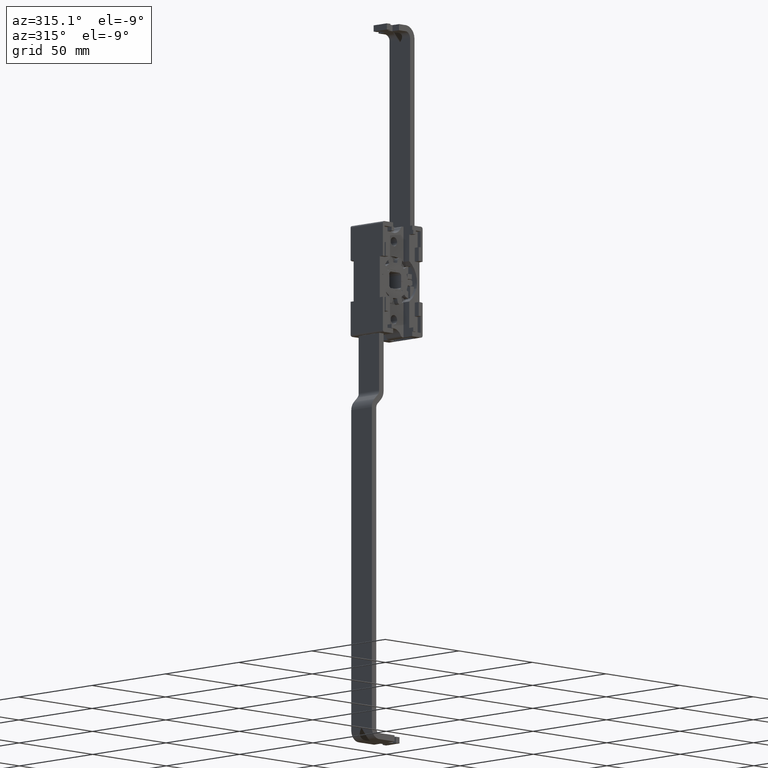
[diagram: clean part render]
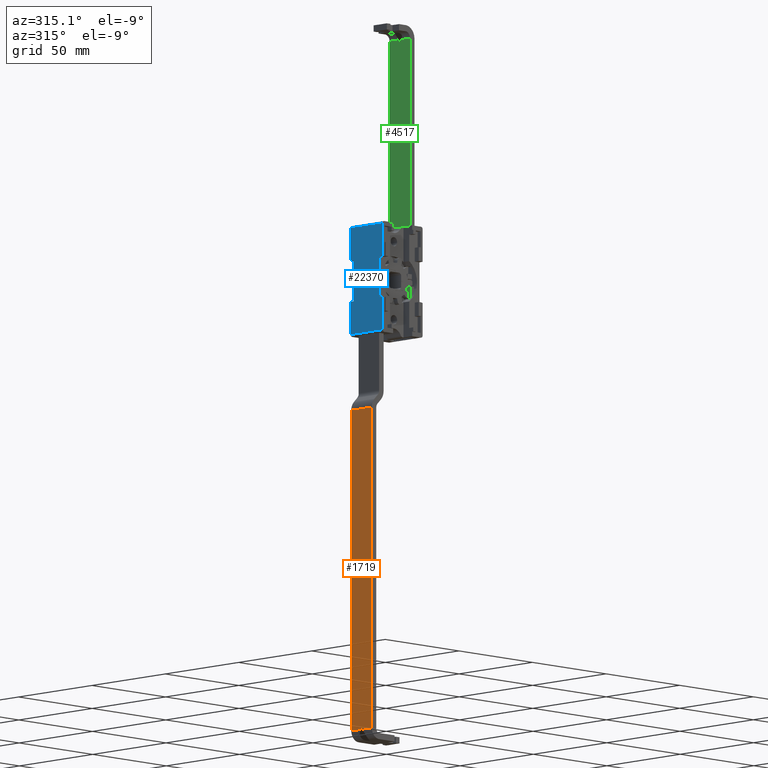
[diagram: same view with three faces highlighted in distinct colors, each labeled with its STEP entity id]
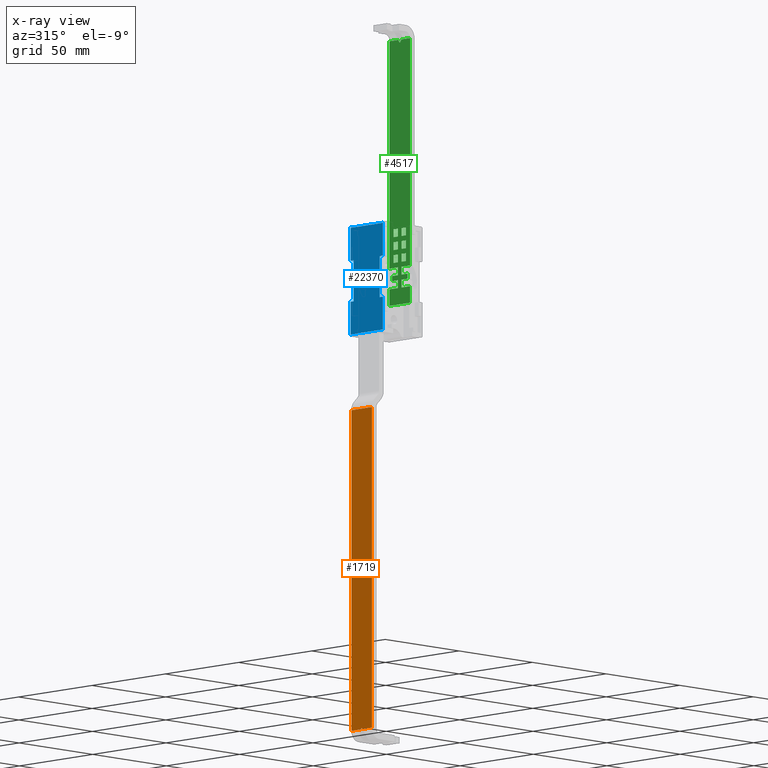
[diagram: x-ray of the same camera — body ghosted, the three highlighted faces saturated]
A machine part, auxiliary view with three faces highlighted in distinct colors.
The next image is the same camera in x-ray (body ghosted, the three faces saturated) — at least one of them is partly hidden behind the body in this view.
Their STEP definitions:

[orange] entity #1719 — the highlighted face is a freeform B-spline surface patch.
#51=CARTESIAN_POINT('',(-16.900000421246951,3.255396E-014,-219.236170932559500));
#52=VERTEX_POINT('',#51);
#58=CARTESIAN_POINT('',(-16.900000421246901,0.540120017334167,-220.000015986382490));
#59=VERTEX_POINT('',#58);
#60=CARTESIAN_POINT('',(-16.900000421246901,0.540120017334167,-220.000015986382490));
#61=CARTESIAN_POINT('',(-16.900000421246951,3.255396E-014,-219.236170932559500));
#62=QUASI_UNIFORM_CURVE('',1,(#60,#61),.UNSPECIFIED.,.F.,.U.);
#63=EDGE_CURVE('',#59,#52,#62,.T.);
#102=CARTESIAN_POINT('',(-16.900000421246901,-0.540120017334056,-220.000015986382490));
#103=VERTEX_POINT('',#102);
#119=CARTESIAN_POINT('',(-16.900000421246901,-0.540120017334056,-220.000015986382490));
#120=CARTESIAN_POINT('',(-16.900000421246951,3.255396E-014,-219.236170932559500));
#121=QUASI_UNIFORM_CURVE('',1,(#119,#120),.UNSPECIFIED.,.F.,.U.);
#122=EDGE_CURVE('',#103,#52,#121,.T.);
#1658=CARTESIAN_POINT('',(-16.900000421246901,-7.000000332482160,-220.000015986382490));
#1659=VERTEX_POINT('',#1658);
#1675=CARTESIAN_POINT('',(-16.900000421246901,-0.540120017334056,-220.000015986382490));
#1676=CARTESIAN_POINT('',(-16.900000421246901,-7.000000332482160,-220.000015986382490));
#1677=QUASI_UNIFORM_CURVE('',1,(#1675,#1676),.UNSPECIFIED.,.F.,.U.);
#1678=EDGE_CURVE('',#103,#1659,#1677,.T.);
#1683=CARTESIAN_POINT('',(-16.900000421246901,-7.699300469984402,-227.805071428494300));
#1684=CARTESIAN_POINT('',(-16.900000421246901,-7.699300469984402,-55.937584081471577));
#1685=CARTESIAN_POINT('',(-16.900000421246901,7.699300720323921,-227.805071428494300));
#1686=CARTESIAN_POINT('',(-16.900000421246901,7.699300720323921,-55.937584081471577));
#1687=B_SPLINE_SURFACE_WITH_KNOTS('',1,1,((#1683,#1685),(#1684,#1686)),.UNSPECIFIED.,.F.,.F.,.U.,(2,2),(2,2),(0.0,171.867487347022690),(0.0,15.398601190308320),.UNSPECIFIED.);
#1688=ORIENTED_EDGE('',*,*,#122,.F.);
#1689=ORIENTED_EDGE('',*,*,#1678,.T.);
#1690=CARTESIAN_POINT('',(-16.900000421246851,-7.000000332482160,-63.742643714732708));
#1691=VERTEX_POINT('',#1690);
#1692=CARTESIAN_POINT('',(-16.900000421246851,-7.000000332482160,-63.742643714732708));
#1693=CARTESIAN_POINT('',(-16.900000421246901,-7.000000332482160,-220.000015986382490));
#1694=QUASI_UNIFORM_CURVE('',1,(#1692,#1693),.UNSPECIFIED.,.F.,.U.);
#1695=EDGE_CURVE('',#1691,#1659,#1694,.T.);
#1696=ORIENTED_EDGE('',*,*,#1695,.F.);
#1697=CARTESIAN_POINT('',(-16.900000421246851,7.000000332482160,-63.742643714732708));
#1698=VERTEX_POINT('',#1697);
#1699=CARTESIAN_POINT('',(-16.900000421246851,7.000000332482160,-63.742643714732708));
#1700=CARTESIAN_POINT('',(-16.900000421246851,-7.000000332482160,-63.742643714732708));
#1701=QUASI_UNIFORM_CURVE('',1,(#1699,#1700),.UNSPECIFIED.,.F.,.U.);
#1702=EDGE_CURVE('',#1698,#1691,#1701,.T.);
#1703=ORIENTED_EDGE('',*,*,#1702,.F.);
#1704=CARTESIAN_POINT('',(-16.900000421246901,7.000000332482160,-220.000015986382490));
#1705=VERTEX_POINT('',#1704);
#1706=CARTESIAN_POINT('',(-16.900000421246851,7.000000332482160,-63.742643714732708));
#1707=CARTESIAN_POINT('',(-16.900000421246901,7.000000332482160,-220.000015986382490));
#1708=QUASI_UNIFORM_CURVE('',1,(#1706,#1707),.UNSPECIFIED.,.F.,.U.);
#1709=EDGE_CURVE('',#1698,#1705,#1708,.T.);
#1710=ORIENTED_EDGE('',*,*,#1709,.T.);
#1711=CARTESIAN_POINT('',(-16.900000421246901,7.000000332482160,-220.000015986382490));
#1712=CARTESIAN_POINT('',(-16.900000421246901,0.540120017334167,-220.000015986382490));
#1713=QUASI_UNIFORM_CURVE('',1,(#1711,#1712),.UNSPECIFIED.,.F.,.U.);
#1714=EDGE_CURVE('',#1705,#59,#1713,.T.);
#1715=ORIENTED_EDGE('',*,*,#1714,.T.);
#1716=ORIENTED_EDGE('',*,*,#63,.T.);
#1717=EDGE_LOOP('',(#1688,#1689,#1696,#1703,#1710,#1715,#1716));
#1718=FACE_OUTER_BOUND('',#1717,.T.);
#1719=ADVANCED_FACE('',(#1718),#1687,.T.);

[blue] entity #22370 — the highlighted face is a freeform B-spline surface patch.
#19068=CARTESIAN_POINT('',(-13.500000641225300,8.900000422727320,-10.000000474974801));
#19069=VERTEX_POINT('',#19068);
#19075=CARTESIAN_POINT('',(-13.500000641225300,8.900000422727320,10.000000474974801));
#19076=VERTEX_POINT('',#19075);
#19077=CARTESIAN_POINT('',(-13.500000641225300,8.900000422727320,-10.000000474974801));
#19078=CARTESIAN_POINT('',(-13.500000641225300,8.900000422727320,10.000000474974801));
#19079=QUASI_UNIFORM_CURVE('',1,(#19077,#19078),.UNSPECIFIED.,.F.,.U.);
#19080=EDGE_CURVE('',#19069,#19076,#19079,.T.);
#19564=CARTESIAN_POINT('',(-13.500000641225300,11.000000522472080,10.000000474974801));
#19565=VERTEX_POINT('',#19564);
#19566=CARTESIAN_POINT('',(-13.500000641225300,8.900000422727320,10.000000474974801));
#19567=CARTESIAN_POINT('',(-13.500000641225300,11.000000522472080,10.000000474974801));
#19568=QUASI_UNIFORM_CURVE('',1,(#19566,#19567),.UNSPECIFIED.,.F.,.U.);
#19569=EDGE_CURVE('',#19076,#19565,#19568,.T.);
#20151=CARTESIAN_POINT('',(-13.500000641225300,11.000000522472060,-10.000000474974801));
#20152=VERTEX_POINT('',#20151);
#20158=CARTESIAN_POINT('',(-13.500000641225300,8.900000422727320,-10.000000474974801));
#20159=CARTESIAN_POINT('',(-13.500000641225300,11.000000522472060,-10.000000474974801));
#20160=QUASI_UNIFORM_CURVE('',1,(#20158,#20159),.UNSPECIFIED.,.F.,.U.);
#20161=EDGE_CURVE('',#19069,#20152,#20160,.T.);
#20483=CARTESIAN_POINT('',(-13.500000641225300,-8.900000422727320,10.000000474974801));
#20484=VERTEX_POINT('',#20483);
#20490=CARTESIAN_POINT('',(-13.500000641225300,-8.900000422727320,-10.000000474974801));
#20491=VERTEX_POINT('',#20490);
#20492=CARTESIAN_POINT('',(-13.500000641225300,-8.900000422727320,-10.000000474974801));
#20493=CARTESIAN_POINT('',(-13.500000641225300,-8.900000422727320,10.000000474974801));
#20494=QUASI_UNIFORM_CURVE('',1,(#20492,#20493),.UNSPECIFIED.,.F.,.U.);
#20495=EDGE_CURVE('',#20491,#20484,#20494,.T.);
#20978=CARTESIAN_POINT('',(-13.500000641225300,-11.000000522472080,10.000000474974801));
#20979=VERTEX_POINT('',#20978);
#20985=CARTESIAN_POINT('',(-13.500000641225300,-8.900000422727320,10.000000474974801));
#20986=CARTESIAN_POINT('',(-13.500000641225300,-11.000000522472080,10.000000474974801));
#20987=QUASI_UNIFORM_CURVE('',1,(#20985,#20986),.UNSPECIFIED.,.F.,.U.);
#20988=EDGE_CURVE('',#20484,#20979,#20987,.T.);
#21567=CARTESIAN_POINT('',(-13.500000641225300,-11.000000522472080,-10.000000474974801));
#21568=VERTEX_POINT('',#21567);
#21569=CARTESIAN_POINT('',(-13.500000641225300,-8.900000422727320,-10.000000474974801));
#21570=CARTESIAN_POINT('',(-13.500000641225300,-11.000000522472080,-10.000000474974801));
#21571=QUASI_UNIFORM_CURVE('',1,(#21569,#21570),.UNSPECIFIED.,.F.,.U.);
#21572=EDGE_CURVE('',#20491,#21568,#21571,.T.);
#21902=CARTESIAN_POINT('',(-13.500000641225300,-11.000000522471961,-26.000001234933400));
#21903=VERTEX_POINT('',#21902);
#21919=CARTESIAN_POINT('',(-13.500000641225300,11.000000522472080,-26.000001234933400));
#21920=VERTEX_POINT('',#21919);
#21921=CARTESIAN_POINT('',(-13.500000641225300,11.000000522472080,-26.000001234933400));
#21922=CARTESIAN_POINT('',(-13.500000641225300,-11.000000522471961,-26.000001234933400));
#21923=QUASI_UNIFORM_CURVE('',1,(#21921,#21922),.UNSPECIFIED.,.F.,.U.);
#21924=EDGE_CURVE('',#21920,#21903,#21923,.T.);
#21965=CARTESIAN_POINT('',(-13.500000641225240,-11.000000522471961,26.000001234933951));
#21966=VERTEX_POINT('',#21965);
#21987=CARTESIAN_POINT('',(-13.500000641225240,11.000000522472080,26.000001234933951));
#21988=VERTEX_POINT('',#21987);
#22002=CARTESIAN_POINT('',(-13.500000641225240,11.000000522472080,26.000001234933951));
#22003=CARTESIAN_POINT('',(-13.500000641225240,-11.000000522471961,26.000001234933951));
#22004=QUASI_UNIFORM_CURVE('',1,(#22002,#22003),.UNSPECIFIED.,.F.,.U.);
#22005=EDGE_CURVE('',#21988,#21966,#22004,.T.);
#22105=CARTESIAN_POINT('',(-13.500000641225300,-11.000000522472080,-10.000000474974801));
#22106=CARTESIAN_POINT('',(-13.500000641225300,-11.000000522471961,-26.000001234933400));
#22107=QUASI_UNIFORM_CURVE('',1,(#22105,#22106),.UNSPECIFIED.,.F.,.U.);
#22108=EDGE_CURVE('',#21568,#21903,#22107,.T.);
#22151=CARTESIAN_POINT('',(-13.500000641225240,-11.000000522471961,26.000001234933951));
#22152=CARTESIAN_POINT('',(-13.500000641225300,-11.000000522472080,10.000000474974801));
#22153=QUASI_UNIFORM_CURVE('',1,(#22151,#22152),.UNSPECIFIED.,.F.,.U.);
#22154=EDGE_CURVE('',#21966,#20979,#22153,.T.);
#22343=CARTESIAN_POINT('',(-13.500000641225300,-12.098901151587580,-28.597402233794821));
#22344=CARTESIAN_POINT('',(-13.500000641225300,-12.098901151587580,28.597402698711619));
#22345=CARTESIAN_POINT('',(-13.500000641225300,12.098901151587580,-28.597402233794821));
#22346=CARTESIAN_POINT('',(-13.500000641225300,12.098901151587580,28.597402698711619));
#22347=B_SPLINE_SURFACE_WITH_KNOTS('',1,1,((#22343,#22345),(#22344,#22346)),.UNSPECIFIED.,.F.,.F.,.U.,(2,2),(2,2),(0.0,57.194804932506429),(0.0,24.197802303175159),.UNSPECIFIED.);
#22348=ORIENTED_EDGE('',*,*,#19080,.F.);
#22349=ORIENTED_EDGE('',*,*,#20161,.T.);
#22350=CARTESIAN_POINT('',(-13.500000641225300,11.000000522472060,-10.000000474974801));
#22351=CARTESIAN_POINT('',(-13.500000641225300,11.000000522472080,-26.000001234933400));
#22352=QUASI_UNIFORM_CURVE('',1,(#22350,#22351),.UNSPECIFIED.,.F.,.U.);
#22353=EDGE_CURVE('',#20152,#21920,#22352,.T.);
#22354=ORIENTED_EDGE('',*,*,#22353,.T.);
#22355=ORIENTED_EDGE('',*,*,#21924,.T.);
#22356=ORIENTED_EDGE('',*,*,#22108,.F.);
#22357=ORIENTED_EDGE('',*,*,#21572,.F.);
#22358=ORIENTED_EDGE('',*,*,#20495,.T.);
#22359=ORIENTED_EDGE('',*,*,#20988,.T.);
#22360=ORIENTED_EDGE('',*,*,#22154,.F.);
#22361=ORIENTED_EDGE('',*,*,#22005,.F.);
#22362=CARTESIAN_POINT('',(-13.500000641225240,11.000000522472080,26.000001234933951));
#22363=CARTESIAN_POINT('',(-13.500000641225300,11.000000522472080,10.000000474974801));
#22364=QUASI_UNIFORM_CURVE('',1,(#22362,#22363),.UNSPECIFIED.,.F.,.U.);
#22365=EDGE_CURVE('',#21988,#19565,#22364,.T.);
#22366=ORIENTED_EDGE('',*,*,#22365,.T.);
#22367=ORIENTED_EDGE('',*,*,#19569,.F.);
#22368=EDGE_LOOP('',(#22348,#22349,#22354,#22355,#22356,#22357,#22358,#22359,#22360,#22361,#22366,#22367));
#22369=FACE_OUTER_BOUND('',#22368,.T.);
#22370=ADVANCED_FACE('',(#22369),#22347,.T.);

[green] entity #4517 — the highlighted face is a freeform B-spline surface patch.
#2531=CARTESIAN_POINT('',(8.900000041247779,0.353553390593231,117.893527783124600));
#2532=VERTEX_POINT('',#2531);
#2538=CARTESIAN_POINT('',(8.900000041247779,-0.353553390593287,117.893527783124400));
#2539=VERTEX_POINT('',#2538);
#2540=CARTESIAN_POINT('',(8.900000041247779,-0.353553390593134,117.893527783124400));
#2541=CARTESIAN_POINT('',(8.900000041247781,1.329480E-013,117.393527783124870));
#2542=CARTESIAN_POINT('',(8.900000041247779,0.353553390593252,117.893527783124600));
#2550=(BOUNDED_CURVE()B_SPLINE_CURVE(2,(#2540,#2541,#2542),.UNSPECIFIED.,.F.,.U.)CURVE()GEOMETRIC_REPRESENTATION_ITEM()QUASI_UNIFORM_CURVE()RATIONAL_B_SPLINE_CURVE((1.0,0.707106781186709,1.0))REPRESENTATION_ITEM(''));
#2551=EDGE_CURVE('',#2539,#2532,#2550,.T.);
#2654=CARTESIAN_POINT('',(8.900000044703019,-1.135849587458936,118.999861671069790));
#2655=VERTEX_POINT('',#2654);
#2656=CARTESIAN_POINT('',(8.900000041247779,-0.353553390593287,117.893527783124400));
#2657=CARTESIAN_POINT('',(8.900000044703019,-1.135849587458936,118.999861671069790));
#2658=QUASI_UNIFORM_CURVE('',1,(#2656,#2657),.UNSPECIFIED.,.F.,.U.);
#2659=EDGE_CURVE('',#2539,#2655,#2658,.T.);
#2684=CARTESIAN_POINT('',(8.900000044703019,1.135849587458936,118.999861671069790));
#2685=VERTEX_POINT('',#2684);
#2686=CARTESIAN_POINT('',(8.900000041247779,0.353553390593231,117.893527783124600));
#2687=CARTESIAN_POINT('',(8.900000044703019,1.135849587458936,118.999861671069790));
#2688=QUASI_UNIFORM_CURVE('',1,(#2686,#2687),.UNSPECIFIED.,.F.,.U.);
#2689=EDGE_CURVE('',#2532,#2685,#2688,.T.);
#2971=CARTESIAN_POINT('',(8.900000041247779,1.249999999999972,10.660006222166400));
#2972=VERTEX_POINT('',#2971);
#2978=CARTESIAN_POINT('',(8.900000041247800,1.250000000000000,14.460006222166401));
#2979=VERTEX_POINT('',#2978);
#2980=CARTESIAN_POINT('',(8.900000041247800,1.250000000000000,14.460006222166401));
#2981=CARTESIAN_POINT('',(8.900000041247779,1.249999999999972,10.660006222166400));
#2982=QUASI_UNIFORM_CURVE('',1,(#2980,#2981),.UNSPECIFIED.,.F.,.U.);
#2983=EDGE_CURVE('',#2979,#2972,#2982,.T.);
#3006=CARTESIAN_POINT('',(8.900000041247800,4.250000000000000,14.460006222166401));
#3007=VERTEX_POINT('',#3006);
#3008=CARTESIAN_POINT('',(8.900000041247800,4.250000000000000,14.460006222166401));
#3009=CARTESIAN_POINT('',(8.900000041247800,1.250000000000000,14.460006222166401));
#3010=QUASI_UNIFORM_CURVE('',1,(#3008,#3009),.UNSPECIFIED.,.F.,.U.);
#3011=EDGE_CURVE('',#3007,#2979,#3010,.T.);
#3034=CARTESIAN_POINT('',(8.900000041247800,4.250000000000000,10.660006222166400));
#3035=VERTEX_POINT('',#3034);
#3036=CARTESIAN_POINT('',(8.900000041247800,4.250000000000000,10.660006222166400));
#3037=CARTESIAN_POINT('',(8.900000041247800,4.250000000000000,14.460006222166401));
#3038=QUASI_UNIFORM_CURVE('',1,(#3036,#3037),.UNSPECIFIED.,.F.,.U.);
#3039=EDGE_CURVE('',#3035,#3007,#3038,.T.);
#3060=CARTESIAN_POINT('',(8.900000041247779,1.249999999999972,10.660006222166400));
#3061=CARTESIAN_POINT('',(8.900000041247800,4.250000000000000,10.660006222166400));
#3062=QUASI_UNIFORM_CURVE('',1,(#3060,#3061),.UNSPECIFIED.,.F.,.U.);
#3063=EDGE_CURVE('',#2972,#3035,#3062,.T.);
#3083=CARTESIAN_POINT('',(8.900000041247779,-4.250000000000000,10.660006222166400));
#3084=VERTEX_POINT('',#3083);
#3090=CARTESIAN_POINT('',(8.900000041247800,-4.250000000000000,14.460006222166401));
#3091=VERTEX_POINT('',#3090);
#3092=CARTESIAN_POINT('',(8.900000041247779,-4.250000000000000,10.660006222166400));
#3093=CARTESIAN_POINT('',(8.900000041247800,-4.250000000000000,14.460006222166401));
#3094=QUASI_UNIFORM_CURVE('',1,(#3092,#3093),.UNSPECIFIED.,.F.,.U.);
#3095=EDGE_CURVE('',#3084,#3091,#3094,.T.);
#3117=CARTESIAN_POINT('',(8.900000041247800,-1.250000000000000,10.660006222166400));
#3118=VERTEX_POINT('',#3117);
#3124=CARTESIAN_POINT('',(8.900000041247800,-1.250000000000000,10.660006222166400));
#3125=CARTESIAN_POINT('',(8.900000041247779,-4.250000000000000,10.660006222166400));
#3126=QUASI_UNIFORM_CURVE('',1,(#3124,#3125),.UNSPECIFIED.,.F.,.U.);
#3127=EDGE_CURVE('',#3118,#3084,#3126,.T.);
#3145=CARTESIAN_POINT('',(8.900000041247800,-1.250000000000000,14.460006222166401));
#3146=VERTEX_POINT('',#3145);
#3152=CARTESIAN_POINT('',(8.900000041247800,-1.250000000000000,14.460006222166401));
#3153=CARTESIAN_POINT('',(8.900000041247800,-1.250000000000000,10.660006222166400));
#3154=QUASI_UNIFORM_CURVE('',1,(#3152,#3153),.UNSPECIFIED.,.F.,.U.);
#3155=EDGE_CURVE('',#3146,#3118,#3154,.T.);
#3172=CARTESIAN_POINT('',(8.900000041247800,-4.250000000000000,14.460006222166401));
#3173=CARTESIAN_POINT('',(8.900000041247800,-1.250000000000000,14.460006222166401));
#3174=QUASI_UNIFORM_CURVE('',1,(#3172,#3173),.UNSPECIFIED.,.F.,.U.);
#3175=EDGE_CURVE('',#3091,#3146,#3174,.T.);
#3195=CARTESIAN_POINT('',(8.900000041247779,-4.250000000000000,20.740006222166400));
#3196=VERTEX_POINT('',#3195);
#3202=CARTESIAN_POINT('',(8.900000041247800,-1.250000000000000,20.740006222166400));
#3203=VERTEX_POINT('',#3202);
#3204=CARTESIAN_POINT('',(8.900000041247800,-1.250000000000000,20.740006222166400));
#3205=CARTESIAN_POINT('',(8.900000041247779,-4.250000000000000,20.740006222166400));
#3206=QUASI_UNIFORM_CURVE('',1,(#3204,#3205),.UNSPECIFIED.,.F.,.U.);
#3207=EDGE_CURVE('',#3203,#3196,#3206,.T.);
#3230=CARTESIAN_POINT('',(8.900000041247800,-1.250000000000000,16.940006222166399));
#3231=VERTEX_POINT('',#3230);
#3232=CARTESIAN_POINT('',(8.900000041247800,-1.250000000000000,16.940006222166399));
#3233=CARTESIAN_POINT('',(8.900000041247800,-1.250000000000000,20.740006222166400));
#3234=QUASI_UNIFORM_CURVE('',1,(#3232,#3233),.UNSPECIFIED.,.F.,.U.);
#3235=EDGE_CURVE('',#3231,#3203,#3234,.T.);
#3258=CARTESIAN_POINT('',(8.900000041247800,-4.250000000000000,16.940006222166399));
#3259=VERTEX_POINT('',#3258);
#3260=CARTESIAN_POINT('',(8.900000041247800,-4.250000000000000,16.940006222166399));
#3261=CARTESIAN_POINT('',(8.900000041247800,-1.250000000000000,16.940006222166399));
#3262=QUASI_UNIFORM_CURVE('',1,(#3260,#3261),.UNSPECIFIED.,.F.,.U.);
#3263=EDGE_CURVE('',#3259,#3231,#3262,.T.);
#3284=CARTESIAN_POINT('',(8.900000041247779,-4.250000000000000,20.740006222166400));
#3285=CARTESIAN_POINT('',(8.900000041247800,-4.250000000000000,16.940006222166399));
#3286=QUASI_UNIFORM_CURVE('',1,(#3284,#3285),.UNSPECIFIED.,.F.,.U.);
#3287=EDGE_CURVE('',#3196,#3259,#3286,.T.);
#3307=CARTESIAN_POINT('',(8.900000041247779,-4.250000000000000,27.020006222166401));
#3308=VERTEX_POINT('',#3307);
#3314=CARTESIAN_POINT('',(8.900000041247800,-1.250000000000000,27.020006222166401));
#3315=VERTEX_POINT('',#3314);
#3316=CARTESIAN_POINT('',(8.900000041247800,-1.250000000000000,27.020006222166401));
#3317=CARTESIAN_POINT('',(8.900000041247779,-4.250000000000000,27.020006222166401));
#3318=QUASI_UNIFORM_CURVE('',1,(#3316,#3317),.UNSPECIFIED.,.F.,.U.);
#3319=EDGE_CURVE('',#3315,#3308,#3318,.T.);
#3342=CARTESIAN_POINT('',(8.900000041247800,-1.250000000000000,23.220006222166401));
#3343=VERTEX_POINT('',#3342);
#3344=CARTESIAN_POINT('',(8.900000041247800,-1.250000000000000,23.220006222166401));
#3345=CARTESIAN_POINT('',(8.900000041247800,-1.250000000000000,27.020006222166401));
#3346=QUASI_UNIFORM_CURVE('',1,(#3344,#3345),.UNSPECIFIED.,.F.,.U.);
#3347=EDGE_CURVE('',#3343,#3315,#3346,.T.);
#3370=CARTESIAN_POINT('',(8.900000041247800,-4.250000000000000,23.220006222166401));
#3371=VERTEX_POINT('',#3370);
#3372=CARTESIAN_POINT('',(8.900000041247800,-4.250000000000000,23.220006222166401));
#3373=CARTESIAN_POINT('',(8.900000041247800,-1.250000000000000,23.220006222166401));
#3374=QUASI_UNIFORM_CURVE('',1,(#3372,#3373),.UNSPECIFIED.,.F.,.U.);
#3375=EDGE_CURVE('',#3371,#3343,#3374,.T.);
#3396=CARTESIAN_POINT('',(8.900000041247779,-4.250000000000000,27.020006222166401));
#3397=CARTESIAN_POINT('',(8.900000041247800,-4.250000000000000,23.220006222166401));
#3398=QUASI_UNIFORM_CURVE('',1,(#3396,#3397),.UNSPECIFIED.,.F.,.U.);
#3399=EDGE_CURVE('',#3308,#3371,#3398,.T.);
#3419=CARTESIAN_POINT('',(8.900000041247779,1.250000000000084,27.020006222166401));
#3420=VERTEX_POINT('',#3419);
#3426=CARTESIAN_POINT('',(8.900000041247800,4.250000000000000,27.020006222166401));
#3427=VERTEX_POINT('',#3426);
#3428=CARTESIAN_POINT('',(8.900000041247779,1.250000000000084,27.020006222166401));
#3429=CARTESIAN_POINT('',(8.900000041247800,4.250000000000000,27.020006222166401));
#3430=QUASI_UNIFORM_CURVE('',1,(#3428,#3429),.UNSPECIFIED.,.F.,.U.);
#3431=EDGE_CURVE('',#3420,#3427,#3430,.T.);
#3453=CARTESIAN_POINT('',(8.900000041247800,1.250000000000000,23.220006222166401));
#3454=VERTEX_POINT('',#3453);
#3460=CARTESIAN_POINT('',(8.900000041247800,1.250000000000000,23.220006222166401));
#3461=CARTESIAN_POINT('',(8.900000041247779,1.250000000000084,27.020006222166401));
#3462=QUASI_UNIFORM_CURVE('',1,(#3460,#3461),.UNSPECIFIED.,.F.,.U.);
#3463=EDGE_CURVE('',#3454,#3420,#3462,.T.);
#3481=CARTESIAN_POINT('',(8.900000041247800,4.250000000000000,23.220006222166401));
#3482=VERTEX_POINT('',#3481);
#3488=CARTESIAN_POINT('',(8.900000041247800,4.250000000000000,23.220006222166401));
#3489=CARTESIAN_POINT('',(8.900000041247800,1.250000000000000,23.220006222166401));
#3490=QUASI_UNIFORM_CURVE('',1,(#3488,#3489),.UNSPECIFIED.,.F.,.U.);
#3491=EDGE_CURVE('',#3482,#3454,#3490,.T.);
#3508=CARTESIAN_POINT('',(8.900000041247800,4.250000000000000,27.020006222166401));
#3509=CARTESIAN_POINT('',(8.900000041247800,4.250000000000000,23.220006222166401));
#3510=QUASI_UNIFORM_CURVE('',1,(#3508,#3509),.UNSPECIFIED.,.F.,.U.);
#3511=EDGE_CURVE('',#3427,#3482,#3510,.T.);
#3531=CARTESIAN_POINT('',(8.900000041247779,4.250000000000000,16.940006222166399));
#3532=VERTEX_POINT('',#3531);
#3538=CARTESIAN_POINT('',(8.900000041247800,1.250000000000000,16.940006222166399));
#3539=VERTEX_POINT('',#3538);
#3540=CARTESIAN_POINT('',(8.900000041247779,4.250000000000000,16.940006222166399));
#3541=CARTESIAN_POINT('',(8.900000041247800,1.250000000000000,16.940006222166399));
#3542=QUASI_UNIFORM_CURVE('',1,(#3540,#3541),.UNSPECIFIED.,.F.,.U.);
#3543=EDGE_CURVE('',#3532,#3539,#3542,.T.);
#3565=CARTESIAN_POINT('',(8.900000041247800,4.250000000000000,20.740006222166400));
#3566=VERTEX_POINT('',#3565);
#3572=CARTESIAN_POINT('',(8.900000041247800,4.250000000000000,20.740006222166400));
#3573=CARTESIAN_POINT('',(8.900000041247779,4.250000000000000,16.940006222166399));
#3574=QUASI_UNIFORM_CURVE('',1,(#3572,#3573),.UNSPECIFIED.,.F.,.U.);
#3575=EDGE_CURVE('',#3566,#3532,#3574,.T.);
#3593=CARTESIAN_POINT('',(8.900000041247800,1.250000000000000,20.740006222166400));
#3594=VERTEX_POINT('',#3593);
#3600=CARTESIAN_POINT('',(8.900000041247800,1.250000000000000,20.740006222166400));
#3601=CARTESIAN_POINT('',(8.900000041247800,4.250000000000000,20.740006222166400));
#3602=QUASI_UNIFORM_CURVE('',1,(#3600,#3601),.UNSPECIFIED.,.F.,.U.);
#3603=EDGE_CURVE('',#3594,#3566,#3602,.T.);
#3620=CARTESIAN_POINT('',(8.900000041247800,1.250000000000000,16.940006222166399));
#3621=CARTESIAN_POINT('',(8.900000041247800,1.250000000000000,20.740006222166400));
#3622=QUASI_UNIFORM_CURVE('',1,(#3620,#3621),.UNSPECIFIED.,.F.,.U.);
#3623=EDGE_CURVE('',#3539,#3594,#3622,.T.);
#3643=CARTESIAN_POINT('',(8.900000041247800,-1.250000000000000,-1.899993777833595));
#3644=VERTEX_POINT('',#3643);
#3650=CARTESIAN_POINT('',(8.900000041247779,-7.000000332482220,-1.899993777833595));
#3651=VERTEX_POINT('',#3650);
#3652=CARTESIAN_POINT('',(8.900000041247800,-1.250000000000000,-1.899993777833595));
#3653=CARTESIAN_POINT('',(8.900000041247779,-7.000000332482220,-1.899993777833595));
#3654=QUASI_UNIFORM_CURVE('',1,(#3652,#3653),.UNSPECIFIED.,.F.,.U.);
#3655=EDGE_CURVE('',#3644,#3651,#3654,.T.);
#3677=CARTESIAN_POINT('',(8.900000041247800,-1.250000000000000,1.900006222166405));
#3678=VERTEX_POINT('',#3677);
#3684=CARTESIAN_POINT('',(8.900000041247800,-1.250000000000000,1.900006222166405));
#3685=CARTESIAN_POINT('',(8.900000041247800,-1.250000000000000,-1.899993777833595));
#3686=QUASI_UNIFORM_CURVE('',1,(#3684,#3685),.UNSPECIFIED.,.F.,.U.);
#3687=EDGE_CURVE('',#3678,#3644,#3686,.T.);
#3705=CARTESIAN_POINT('',(8.900000041247800,-5.250000000000000,1.900006222166405));
#3706=VERTEX_POINT('',#3705);
#3712=CARTESIAN_POINT('',(8.900000041247800,-5.250000000000000,1.900006222166405));
#3713=CARTESIAN_POINT('',(8.900000041247800,-1.250000000000000,1.900006222166405));
#3714=QUASI_UNIFORM_CURVE('',1,(#3712,#3713),.UNSPECIFIED.,.F.,.U.);
#3715=EDGE_CURVE('',#3706,#3678,#3714,.T.);
#3733=CARTESIAN_POINT('',(8.900000041247800,-5.250000000000000,4.380006222166405));
#3734=VERTEX_POINT('',#3733);
#3740=CARTESIAN_POINT('',(8.900000041247800,-5.250000000000000,4.380006222166405));
#3741=CARTESIAN_POINT('',(8.900000041247800,-5.250000000000000,1.900006222166405));
#3742=QUASI_UNIFORM_CURVE('',1,(#3740,#3741),.UNSPECIFIED.,.F.,.U.);
#3743=EDGE_CURVE('',#3734,#3706,#3742,.T.);
#3761=CARTESIAN_POINT('',(8.900000041247800,-1.250000000000000,4.380006222166405));
#3762=VERTEX_POINT('',#3761);
#3768=CARTESIAN_POINT('',(8.900000041247800,-1.250000000000000,4.380006222166405));
#3769=CARTESIAN_POINT('',(8.900000041247800,-5.250000000000000,4.380006222166405));
#3770=QUASI_UNIFORM_CURVE('',1,(#3768,#3769),.UNSPECIFIED.,.F.,.U.);
#3771=EDGE_CURVE('',#3762,#3734,#3770,.T.);
#3789=CARTESIAN_POINT('',(8.900000041247800,-1.250000000000000,8.180006222166409));
#3790=VERTEX_POINT('',#3789);
#3796=CARTESIAN_POINT('',(8.900000041247800,-1.250000000000000,8.180006222166409));
#3797=CARTESIAN_POINT('',(8.900000041247800,-1.250000000000000,4.380006222166405));
#3798=QUASI_UNIFORM_CURVE('',1,(#3796,#3797),.UNSPECIFIED.,.F.,.U.);
#3799=EDGE_CURVE('',#3790,#3762,#3798,.T.);
#3817=CARTESIAN_POINT('',(8.900000041247800,-7.000000332482220,8.180006222166409));
#3818=VERTEX_POINT('',#3817);
#3824=CARTESIAN_POINT('',(8.900000041247800,-7.000000332482220,8.180006222166409));
#3825=CARTESIAN_POINT('',(8.900000041247800,-1.250000000000000,8.180006222166409));
#3826=QUASI_UNIFORM_CURVE('',1,(#3824,#3825),.UNSPECIFIED.,.F.,.U.);
#3827=EDGE_CURVE('',#3818,#3790,#3826,.T.);
#3847=CARTESIAN_POINT('',(8.900000041247800,1.250000000000000,4.380006222166405));
#3848=VERTEX_POINT('',#3847);
#3854=CARTESIAN_POINT('',(8.900000041247800,1.250000000000000,8.180006222166409));
#3855=VERTEX_POINT('',#3854);
#3856=CARTESIAN_POINT('',(8.900000041247800,1.250000000000000,4.380006222166405));
#3857=CARTESIAN_POINT('',(8.900000041247800,1.250000000000000,8.180006222166409));
#3858=QUASI_UNIFORM_CURVE('',1,(#3856,#3857),.UNSPECIFIED.,.F.,.U.);
#3859=EDGE_CURVE('',#3848,#3855,#3858,.T.);
#3881=CARTESIAN_POINT('',(8.900000041247800,5.250000000000000,4.380006222166400));
#3882=VERTEX_POINT('',#3881);
#3888=CARTESIAN_POINT('',(8.900000041247800,5.250000000000000,4.380006222166400));
#3889=CARTESIAN_POINT('',(8.900000041247800,1.250000000000000,4.380006222166405));
#3890=QUASI_UNIFORM_CURVE('',1,(#3888,#3889),.UNSPECIFIED.,.F.,.U.);
#3891=EDGE_CURVE('',#3882,#3848,#3890,.T.);
#3909=CARTESIAN_POINT('',(8.900000041247800,5.250000000000000,1.900006222166405));
#3910=VERTEX_POINT('',#3909);
#3916=CARTESIAN_POINT('',(8.900000041247800,5.250000000000000,1.900006222166405));
#3917=CARTESIAN_POINT('',(8.900000041247800,5.250000000000000,4.380006222166400));
#3918=QUASI_UNIFORM_CURVE('',1,(#3916,#3917),.UNSPECIFIED.,.F.,.U.);
#3919=EDGE_CURVE('',#3910,#3882,#3918,.T.);
#3937=CARTESIAN_POINT('',(8.900000041247800,1.250000000000000,1.900006222166405));
#3938=VERTEX_POINT('',#3937);
#3944=CARTESIAN_POINT('',(8.900000041247800,1.250000000000000,1.900006222166405));
#3945=CARTESIAN_POINT('',(8.900000041247800,5.250000000000000,1.900006222166405));
#3946=QUASI_UNIFORM_CURVE('',1,(#3944,#3945),.UNSPECIFIED.,.F.,.U.);
#3947=EDGE_CURVE('',#3938,#3910,#3946,.T.);
#3965=CARTESIAN_POINT('',(8.900000041247800,1.250000000000000,-1.899993777833595));
#3966=VERTEX_POINT('',#3965);
#3972=CARTESIAN_POINT('',(8.900000041247800,1.250000000000000,-1.899993777833595));
#3973=CARTESIAN_POINT('',(8.900000041247800,1.250000000000000,1.900006222166405));
#3974=QUASI_UNIFORM_CURVE('',1,(#3972,#3973),.UNSPECIFIED.,.F.,.U.);
#3975=EDGE_CURVE('',#3966,#3938,#3974,.T.);
#3993=CARTESIAN_POINT('',(8.900000041247800,7.000000332482220,-1.899993777833595));
#3994=VERTEX_POINT('',#3993);
#4000=CARTESIAN_POINT('',(8.900000041247800,7.000000332482220,-1.899993777833595));
#4001=CARTESIAN_POINT('',(8.900000041247800,1.250000000000000,-1.899993777833595));
#4002=QUASI_UNIFORM_CURVE('',1,(#4000,#4001),.UNSPECIFIED.,.F.,.U.);
#4003=EDGE_CURVE('',#3994,#3966,#4002,.T.);
#4022=CARTESIAN_POINT('',(8.900000041247800,7.000000332482220,8.180006222166409));
#4023=VERTEX_POINT('',#4022);
#4024=CARTESIAN_POINT('',(8.900000041247800,1.250000000000000,8.180006222166409));
#4025=CARTESIAN_POINT('',(8.900000041247800,7.000000332482220,8.180006222166409));
#4026=QUASI_UNIFORM_CURVE('',1,(#4024,#4025),.UNSPECIFIED.,.F.,.U.);
#4027=EDGE_CURVE('',#3855,#4023,#4026,.T.);
#4042=CARTESIAN_POINT('',(8.900000041247779,-7.000000332482269,-9.999993777833540));
#4043=VERTEX_POINT('',#4042);
#4051=CARTESIAN_POINT('',(8.900000041247779,7.000000332482050,-9.999993777833540));
#4052=VERTEX_POINT('',#4051);
#4053=CARTESIAN_POINT('',(8.900000041247779,7.000000332482050,-9.999993777833540));
#4054=CARTESIAN_POINT('',(8.900000041247779,-7.000000332482269,-9.999993777833540));
#4055=QUASI_UNIFORM_CURVE('',1,(#4053,#4054),.UNSPECIFIED.,.F.,.U.);
#4056=EDGE_CURVE('',#4052,#4043,#4055,.T.);
#4095=CARTESIAN_POINT('',(8.900000044703019,-7.000000332482269,118.999861671069790));
#4096=VERTEX_POINT('',#4095);
#4097=CARTESIAN_POINT('',(8.900000044703019,-1.135849587458936,118.999861671069790));
#4098=CARTESIAN_POINT('',(8.900000044703019,-7.000000332482269,118.999861671069790));
#4099=QUASI_UNIFORM_CURVE('',1,(#4097,#4098),.UNSPECIFIED.,.F.,.U.);
#4100=EDGE_CURVE('',#2655,#4096,#4099,.T.);
#4177=CARTESIAN_POINT('',(8.900000041247800,7.000000332482220,-1.899993777833595));
#4178=CARTESIAN_POINT('',(8.900000041247779,7.000000332482050,-9.999993777833540));
#4179=QUASI_UNIFORM_CURVE('',1,(#4177,#4178),.UNSPECIFIED.,.F.,.U.);
#4180=EDGE_CURVE('',#3994,#4052,#4179,.T.);
#4196=CARTESIAN_POINT('',(8.900000041247779,-7.000000332482220,-1.899993777833595));
#4197=CARTESIAN_POINT('',(8.900000041247779,-7.000000332482269,-9.999993777833540));
#4198=QUASI_UNIFORM_CURVE('',1,(#4196,#4197),.UNSPECIFIED.,.F.,.U.);
#4199=EDGE_CURVE('',#3651,#4043,#4198,.T.);
#4217=CARTESIAN_POINT('',(8.900000044703019,-7.000000332482269,118.999861671069790));
#4218=CARTESIAN_POINT('',(8.900000041247800,-7.000000332482220,8.180006222166409));
#4219=QUASI_UNIFORM_CURVE('',1,(#4217,#4218),.UNSPECIFIED.,.F.,.U.);
#4220=EDGE_CURVE('',#4096,#3818,#4219,.T.);
#4389=CARTESIAN_POINT('',(8.900000044703019,7.000000332482050,118.999861671069790));
#4390=VERTEX_POINT('',#4389);
#4391=CARTESIAN_POINT('',(8.900000044703019,7.000000332482050,118.999861671069790));
#4392=CARTESIAN_POINT('',(8.900000041247800,7.000000332482220,8.180006222166409));
#4393=QUASI_UNIFORM_CURVE('',1,(#4391,#4392),.UNSPECIFIED.,.F.,.U.);
#4394=EDGE_CURVE('',#4390,#4023,#4393,.T.);
#4442=CARTESIAN_POINT('',(8.900000044703019,7.000000332482050,118.999861671069790));
#4443=CARTESIAN_POINT('',(8.900000044703019,1.135849587458936,118.999861671069790));
#4444=QUASI_UNIFORM_CURVE('',1,(#4442,#4443),.UNSPECIFIED.,.F.,.U.);
#4445=EDGE_CURVE('',#4390,#2685,#4444,.T.);
#4450=CARTESIAN_POINT('',(8.900000041247779,-7.699300469984521,-16.443536307479508));
#4451=CARTESIAN_POINT('',(8.900000041247779,-7.699300469984521,125.443407660761590));
#4452=CARTESIAN_POINT('',(8.900000041247779,7.699300720323991,-16.443536307479508));
#4453=CARTESIAN_POINT('',(8.900000041247779,7.699300720323991,125.443407660761590));
#4454=B_SPLINE_SURFACE_WITH_KNOTS('',1,1,((#4450,#4452),(#4451,#4453)),.UNSPECIFIED.,.F.,.F.,.U.,(2,2),(2,2),(0.0,141.886943968241010),(0.0,15.398601190308510),.UNSPECIFIED.);
#4455=ORIENTED_EDGE('',*,*,#2659,.F.);
#4456=ORIENTED_EDGE('',*,*,#2551,.T.);
#4457=ORIENTED_EDGE('',*,*,#2689,.T.);
#4458=ORIENTED_EDGE('',*,*,#4445,.F.);
#4459=ORIENTED_EDGE('',*,*,#4394,.T.);
#4460=ORIENTED_EDGE('',*,*,#4027,.F.);
#4461=ORIENTED_EDGE('',*,*,#3859,.F.);
#4462=ORIENTED_EDGE('',*,*,#3891,.F.);
#4463=ORIENTED_EDGE('',*,*,#3919,.F.);
#4464=ORIENTED_EDGE('',*,*,#3947,.F.);
#4465=ORIENTED_EDGE('',*,*,#3975,.F.);
#4466=ORIENTED_EDGE('',*,*,#4003,.F.);
#4467=ORIENTED_EDGE('',*,*,#4180,.T.);
#4468=ORIENTED_EDGE('',*,*,#4056,.T.);
#4469=ORIENTED_EDGE('',*,*,#4199,.F.);
#4470=ORIENTED_EDGE('',*,*,#3655,.F.);
#4471=ORIENTED_EDGE('',*,*,#3687,.F.);
#4472=ORIENTED_EDGE('',*,*,#3715,.F.);
#4473=ORIENTED_EDGE('',*,*,#3743,.F.);
#4474=ORIENTED_EDGE('',*,*,#3771,.F.);
#4475=ORIENTED_EDGE('',*,*,#3799,.F.);
#4476=ORIENTED_EDGE('',*,*,#3827,.F.);
#4477=ORIENTED_EDGE('',*,*,#4220,.F.);
#4478=ORIENTED_EDGE('',*,*,#4100,.F.);
#4479=EDGE_LOOP('',(#4455,#4456,#4457,#4458,#4459,#4460,#4461,#4462,#4463,#4464,#4465,#4466,#4467,#4468,#4469,#4470,#4471,#4472,#4473,#4474,#4475,#4476,#4477,#4478));
#4480=FACE_OUTER_BOUND('',#4479,.T.);
#4481=ORIENTED_EDGE('',*,*,#3287,.T.);
#4482=ORIENTED_EDGE('',*,*,#3263,.T.);
#4483=ORIENTED_EDGE('',*,*,#3235,.T.);
#4484=ORIENTED_EDGE('',*,*,#3207,.T.);
#4485=EDGE_LOOP('',(#4481,#4482,#4483,#4484));
#4486=FACE_BOUND('',#4485,.T.);
#4487=ORIENTED_EDGE('',*,*,#3399,.T.);
#4488=ORIENTED_EDGE('',*,*,#3375,.T.);
#4489=ORIENTED_EDGE('',*,*,#3347,.T.);
#4490=ORIENTED_EDGE('',*,*,#3319,.T.);
#4491=EDGE_LOOP('',(#4487,#4488,#4489,#4490));
#4492=FACE_BOUND('',#4491,.T.);
#4493=ORIENTED_EDGE('',*,*,#3603,.F.);
#4494=ORIENTED_EDGE('',*,*,#3623,.F.);
#4495=ORIENTED_EDGE('',*,*,#3543,.F.);
#4496=ORIENTED_EDGE('',*,*,#3575,.F.);
#4497=EDGE_LOOP('',(#4493,#4494,#4495,#4496));
#4498=FACE_BOUND('',#4497,.T.);
#4499=ORIENTED_EDGE('',*,*,#3491,.F.);
#4500=ORIENTED_EDGE('',*,*,#3511,.F.);
#4501=ORIENTED_EDGE('',*,*,#3431,.F.);
#4502=ORIENTED_EDGE('',*,*,#3463,.F.);
#4503=EDGE_LOOP('',(#4499,#4500,#4501,#4502));
#4504=FACE_BOUND('',#4503,.T.);
#4505=ORIENTED_EDGE('',*,*,#3063,.T.);
#4506=ORIENTED_EDGE('',*,*,#3039,.T.);
#4507=ORIENTED_EDGE('',*,*,#3011,.T.);
#4508=ORIENTED_EDGE('',*,*,#2983,.T.);
#4509=EDGE_LOOP('',(#4505,#4506,#4507,#4508));
#4510=FACE_BOUND('',#4509,.T.);
#4511=ORIENTED_EDGE('',*,*,#3155,.F.);
#4512=ORIENTED_EDGE('',*,*,#3175,.F.);
#4513=ORIENTED_EDGE('',*,*,#3095,.F.);
#4514=ORIENTED_EDGE('',*,*,#3127,.F.);
#4515=EDGE_LOOP('',(#4511,#4512,#4513,#4514));
#4516=FACE_BOUND('',#4515,.T.);
#4517=ADVANCED_FACE('',(#4480,#4486,#4492,#4498,#4504,#4510,#4516),#4454,.T.);